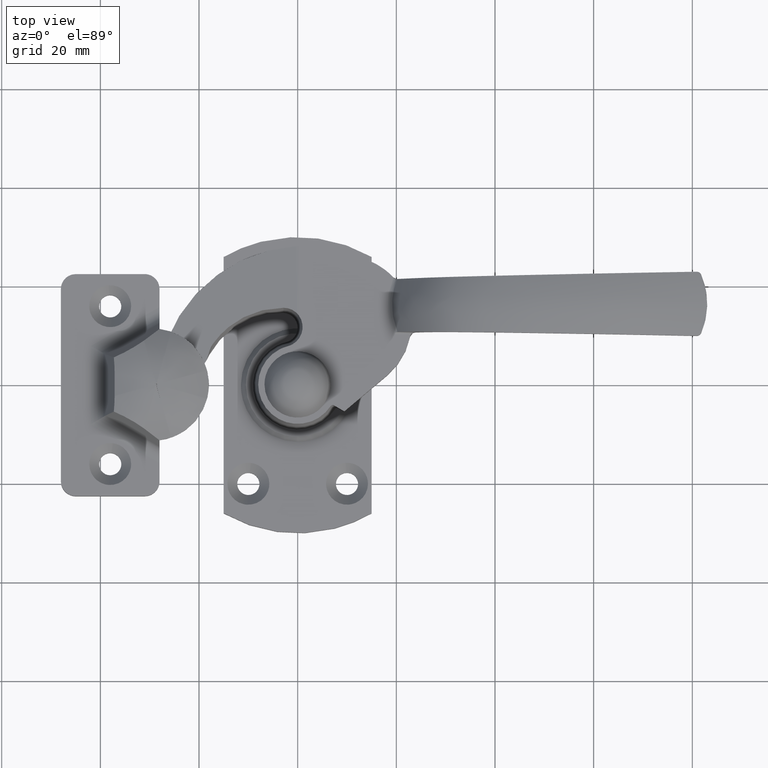
[diagram: clean part render]
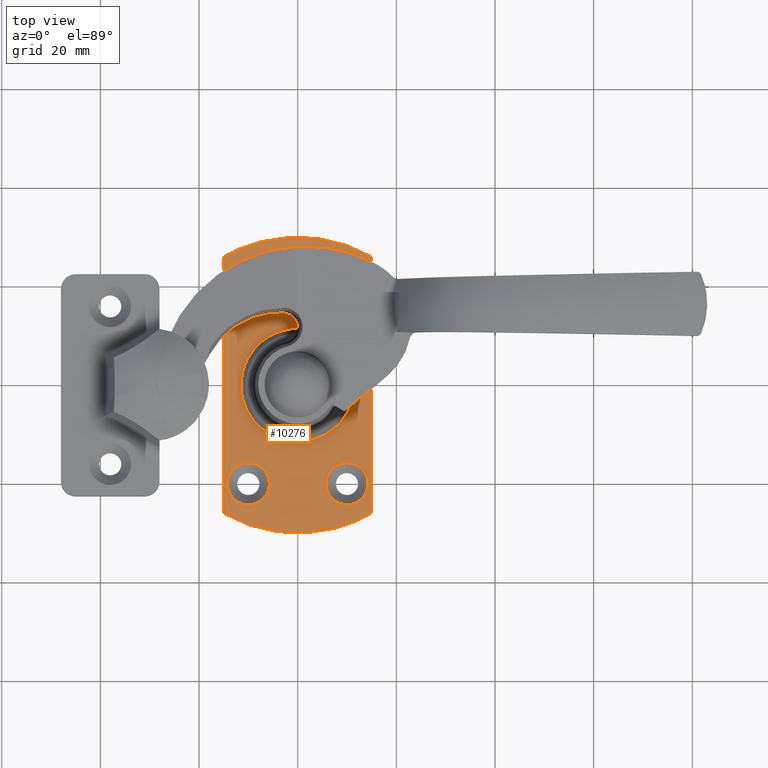
[diagram: same view with one face highlighted and labeled with its STEP entity id]
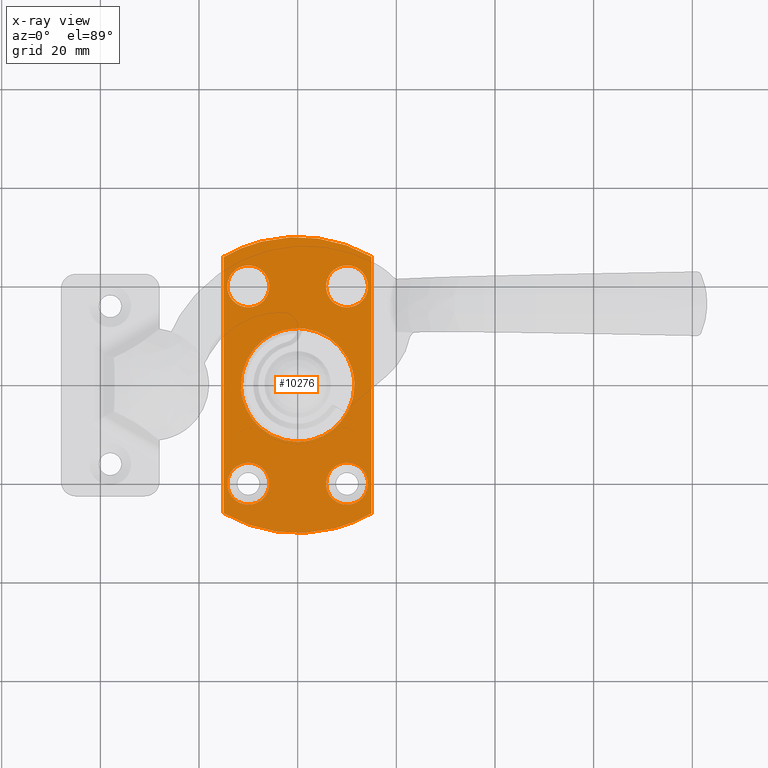
[diagram: x-ray of the same camera — body ghosted, the highlighted face saturated]
A machine part, top view. The second image highlights one B-rep face of the part: STEP entity #10276.
The next image is the same camera in x-ray: the body ghosted, the highlighted face saturated — about 0% of this face is hidden behind the body in this view.
In plain terms, the highlighted face is a freeform B-spline surface patch.
Its self-contained STEP definition (entity closure, byte-faithful):
#7090=CARTESIAN_POINT('',(9.498354502194580,15.779709512949550,5.000000000065622));
#7091=VERTEX_POINT('',#7090);
#7097=CARTESIAN_POINT('',(14.250000000000000,20.0,5.000000000000091));
#7098=VERTEX_POINT('',#7097);
#7099=CARTESIAN_POINT('',(9.498354502194580,15.779709512949541,5.000000000065622));
#7100=CARTESIAN_POINT('',(9.748297490967568,15.750000000000000,5.000000000000091));
#7101=CARTESIAN_POINT('',(10.0,15.750000000000000,5.000000000000091));
#7102=CARTESIAN_POINT('',(14.249999999999996,15.750000000000009,5.000000000000091));
#7103=CARTESIAN_POINT('',(14.250000000000000,20.0,5.000000000000091));
#7111=(BOUNDED_CURVE()B_SPLINE_CURVE(2,(#7099,#7100,#7101,#7102,#7103),.UNSPECIFIED.,.F.,.U.)B_SPLINE_CURVE_WITH_KNOTS((3,2,3),(0.229562473475081,0.250000000000000,0.500000000000000),.UNSPECIFIED.)CURVE()GEOMETRIC_REPRESENTATION_ITEM()RATIONAL_B_SPLINE_CURVE((0.956026754108381,0.976055948286125,1.0,0.707106781186548,1.0))REPRESENTATION_ITEM(''));
#7112=EDGE_CURVE('',#7091,#7098,#7111,.T.);
#7114=CARTESIAN_POINT('',(10.259456293055960,24.242072893295209,5.000000000004363));
#7115=VERTEX_POINT('',#7114);
#7116=CARTESIAN_POINT('',(14.250000000000000,20.0,5.000000000000091));
#7117=CARTESIAN_POINT('',(14.250000000000002,23.998000784287729,5.000000000000091));
#7118=CARTESIAN_POINT('',(10.259456293055965,24.242072893295212,5.000000000004363));
#7126=(BOUNDED_CURVE()B_SPLINE_CURVE(2,(#7116,#7117,#7118),.UNSPECIFIED.,.F.,.U.)B_SPLINE_CURVE_WITH_KNOTS((3,3),(0.500000000000000,0.739332962239320),.UNSPECIFIED.)CURVE()GEOMETRIC_REPRESENTATION_ITEM()RATIONAL_B_SPLINE_CURVE((1.0,0.719603993286268,0.976072041667527))REPRESENTATION_ITEM(''));
#7127=EDGE_CURVE('',#7098,#7115,#7126,.T.);
#7161=CARTESIAN_POINT('',(5.750000000000000,20.0,5.000000000000091));
#7162=VERTEX_POINT('',#7161);
#7163=CARTESIAN_POINT('',(10.259456293055965,24.242072893295209,5.000000000004364));
#7164=CARTESIAN_POINT('',(10.129849244051652,24.249999999999996,5.000000000000091));
#7165=CARTESIAN_POINT('',(10.0,24.250000000000000,5.000000000000091));
#7166=CARTESIAN_POINT('',(5.750000000000000,24.250000000000004,5.000000000000091));
#7167=CARTESIAN_POINT('',(5.750000000000000,20.0,5.000000000000091));
#7175=(BOUNDED_CURVE()B_SPLINE_CURVE(2,(#7163,#7164,#7165,#7166,#7167),.UNSPECIFIED.,.F.,.U.)B_SPLINE_CURVE_WITH_KNOTS((3,2,3),(0.739332962239320,0.750000000000000,1.0),.UNSPECIFIED.)CURVE()GEOMETRIC_REPRESENTATION_ITEM()RATIONAL_B_SPLINE_CURVE((0.976072041667525,0.987502787900279,1.0,0.707106781186548,1.0))REPRESENTATION_ITEM(''));
#7176=EDGE_CURVE('',#7115,#7162,#7175,.T.);
#7178=CARTESIAN_POINT('',(5.750000000000000,20.0,5.000000000000091));
#7179=CARTESIAN_POINT('',(5.750000000000000,16.225258265619047,5.000000000000092));
#7180=CARTESIAN_POINT('',(9.498354502194580,15.779709512949541,5.000000000065622));
#7188=(BOUNDED_CURVE()B_SPLINE_CURVE(2,(#7178,#7179,#7180),.UNSPECIFIED.,.F.,.U.)B_SPLINE_CURVE_WITH_KNOTS((3,3),(0.0,0.229562473475081),.UNSPECIFIED.)CURVE()GEOMETRIC_REPRESENTATION_ITEM()RATIONAL_B_SPLINE_CURVE((1.0,0.731050832900423,0.956026754108381))REPRESENTATION_ITEM(''));
#7189=EDGE_CURVE('',#7162,#7091,#7188,.T.);
#7415=CARTESIAN_POINT('',(-9.666548842930418,15.763101331622209,5.000000000029798));
#7416=VERTEX_POINT('',#7415);
#7422=CARTESIAN_POINT('',(-5.750000000000000,20.0,5.000000000000091));
#7423=VERTEX_POINT('',#7422);
#7424=CARTESIAN_POINT('',(-5.750000000000000,20.0,5.000000000000091));
#7425=CARTESIAN_POINT('',(-5.750000000000000,16.071340410869141,5.000000000000091));
#7426=CARTESIAN_POINT('',(-9.666548842930418,15.763101331622208,5.000000000029799));
#7434=(BOUNDED_CURVE()B_SPLINE_CURVE(2,(#7424,#7425,#7426),.UNSPECIFIED.,.F.,.U.)B_SPLINE_CURVE_WITH_KNOTS((3,3),(0.0,0.236331300614648),.UNSPECIFIED.)CURVE()GEOMETRIC_REPRESENTATION_ITEM()RATIONAL_B_SPLINE_CURVE((1.0,0.723120658626424,0.969723356134003))REPRESENTATION_ITEM(''));
#7435=EDGE_CURVE('',#7423,#7416,#7434,.T.);
#7437=CARTESIAN_POINT('',(-10.333451157069581,24.236898668377791,5.000000000029798));
#7438=VERTEX_POINT('',#7437);
#7439=CARTESIAN_POINT('',(-10.333451157069582,24.236898668377794,5.000000000029798));
#7440=CARTESIAN_POINT('',(-10.166982955007548,24.250000000000004,5.000000000000091));
#7441=CARTESIAN_POINT('',(-10.0,24.250000000000000,5.000000000000091));
#7442=CARTESIAN_POINT('',(-5.750000000000000,24.250000000000004,5.000000000000091));
#7443=CARTESIAN_POINT('',(-5.750000000000000,20.0,5.000000000000091));
#7451=(BOUNDED_CURVE()B_SPLINE_CURVE(2,(#7439,#7440,#7441,#7442,#7443),.UNSPECIFIED.,.F.,.U.)B_SPLINE_CURVE_WITH_KNOTS((3,2,3),(0.736331300614648,0.750000000000000,1.0),.UNSPECIFIED.)CURVE()GEOMETRIC_REPRESENTATION_ITEM()RATIONAL_B_SPLINE_CURVE((0.969723356134003,0.983986122560123,1.0,0.707106781186548,1.0))REPRESENTATION_ITEM(''));
#7452=EDGE_CURVE('',#7438,#7423,#7451,.T.);
#7489=CARTESIAN_POINT('',(-14.250000000000000,20.0,5.000000000000091));
#7490=VERTEX_POINT('',#7489);
#7491=CARTESIAN_POINT('',(-14.250000000000000,20.0,5.000000000000091));
#7492=CARTESIAN_POINT('',(-14.249999999999998,23.928659589130827,5.000000000000090));
#7493=CARTESIAN_POINT('',(-10.333451157069581,24.236898668377787,5.000000000029798));
#7501=(BOUNDED_CURVE()B_SPLINE_CURVE(2,(#7491,#7492,#7493),.UNSPECIFIED.,.F.,.U.)B_SPLINE_CURVE_WITH_KNOTS((3,3),(0.500000000000000,0.736331300614647),.UNSPECIFIED.)CURVE()GEOMETRIC_REPRESENTATION_ITEM()RATIONAL_B_SPLINE_CURVE((1.0,0.723120658626425,0.969723356134001))REPRESENTATION_ITEM(''));
#7502=EDGE_CURVE('',#7490,#7438,#7501,.T.);
#7504=CARTESIAN_POINT('',(-9.666548842930418,15.763101331622211,5.000000000029798));
#7505=CARTESIAN_POINT('',(-9.833017044992454,15.749999999999998,5.000000000000092));
#7506=CARTESIAN_POINT('',(-10.0,15.750000000000000,5.000000000000091));
#7507=CARTESIAN_POINT('',(-14.249999999999996,15.750000000000009,5.000000000000091));
#7508=CARTESIAN_POINT('',(-14.250000000000000,20.0,5.000000000000091));
#7516=(BOUNDED_CURVE()B_SPLINE_CURVE(2,(#7504,#7505,#7506,#7507,#7508),.UNSPECIFIED.,.F.,.U.)B_SPLINE_CURVE_WITH_KNOTS((3,2,3),(0.236331300614648,0.250000000000000,0.500000000000000),.UNSPECIFIED.)CURVE()GEOMETRIC_REPRESENTATION_ITEM()RATIONAL_B_SPLINE_CURVE((0.969723356134003,0.983986122560123,1.0,0.707106781186548,1.0))REPRESENTATION_ITEM(''));
#7517=EDGE_CURVE('',#7416,#7490,#7516,.T.);
#7743=CARTESIAN_POINT('',(9.666548842930418,-15.763101331622209,5.000000000029798));
#7744=VERTEX_POINT('',#7743);
#7750=CARTESIAN_POINT('',(5.750000000000000,-20.0,5.000000000000091));
#7751=VERTEX_POINT('',#7750);
#7752=CARTESIAN_POINT('',(5.750000000000000,-20.0,5.000000000000091));
#7753=CARTESIAN_POINT('',(5.750000000000000,-16.071340410869141,5.000000000000091));
#7754=CARTESIAN_POINT('',(9.666548842930418,-15.763101331622208,5.000000000029799));
#7762=(BOUNDED_CURVE()B_SPLINE_CURVE(2,(#7752,#7753,#7754),.UNSPECIFIED.,.F.,.U.)B_SPLINE_CURVE_WITH_KNOTS((3,3),(0.0,0.236331300614648),.UNSPECIFIED.)CURVE()GEOMETRIC_REPRESENTATION_ITEM()RATIONAL_B_SPLINE_CURVE((1.0,0.723120658626424,0.969723356134003))REPRESENTATION_ITEM(''));
#7763=EDGE_CURVE('',#7751,#7744,#7762,.T.);
#7765=CARTESIAN_POINT('',(10.333451157069581,-24.236898668377791,5.000000000029798));
#7766=VERTEX_POINT('',#7765);
#7767=CARTESIAN_POINT('',(10.333451157069582,-24.236898668377794,5.000000000029798));
#7768=CARTESIAN_POINT('',(10.166982955007548,-24.250000000000004,5.000000000000091));
#7769=CARTESIAN_POINT('',(10.0,-24.250000000000000,5.000000000000091));
#7770=CARTESIAN_POINT('',(5.750000000000000,-24.250000000000004,5.000000000000091));
#7771=CARTESIAN_POINT('',(5.750000000000000,-20.0,5.000000000000091));
#7779=(BOUNDED_CURVE()B_SPLINE_CURVE(2,(#7767,#7768,#7769,#7770,#7771),.UNSPECIFIED.,.F.,.U.)B_SPLINE_CURVE_WITH_KNOTS((3,2,3),(0.736331300614648,0.750000000000000,1.0),.UNSPECIFIED.)CURVE()GEOMETRIC_REPRESENTATION_ITEM()RATIONAL_B_SPLINE_CURVE((0.969723356134003,0.983986122560123,1.0,0.707106781186548,1.0))REPRESENTATION_ITEM(''));
#7780=EDGE_CURVE('',#7766,#7751,#7779,.T.);
#7817=CARTESIAN_POINT('',(14.250000000000000,-20.0,5.000000000000091));
#7818=VERTEX_POINT('',#7817);
#7819=CARTESIAN_POINT('',(14.250000000000000,-20.0,5.000000000000091));
#7820=CARTESIAN_POINT('',(14.249999999999998,-23.928659589130827,5.000000000000090));
#7821=CARTESIAN_POINT('',(10.333451157069581,-24.236898668377787,5.000000000029798));
#7829=(BOUNDED_CURVE()B_SPLINE_CURVE(2,(#7819,#7820,#7821),.UNSPECIFIED.,.F.,.U.)B_SPLINE_CURVE_WITH_KNOTS((3,3),(0.500000000000000,0.736331300614647),.UNSPECIFIED.)CURVE()GEOMETRIC_REPRESENTATION_ITEM()RATIONAL_B_SPLINE_CURVE((1.0,0.723120658626425,0.969723356134001))REPRESENTATION_ITEM(''));
#7830=EDGE_CURVE('',#7818,#7766,#7829,.T.);
#7832=CARTESIAN_POINT('',(9.666548842930418,-15.763101331622211,5.000000000029798));
#7833=CARTESIAN_POINT('',(9.833017044992454,-15.749999999999998,5.000000000000092));
#7834=CARTESIAN_POINT('',(10.0,-15.750000000000000,5.000000000000091));
#7835=CARTESIAN_POINT('',(14.249999999999996,-15.750000000000009,5.000000000000091));
#7836=CARTESIAN_POINT('',(14.250000000000000,-20.0,5.000000000000091));
#7844=(BOUNDED_CURVE()B_SPLINE_CURVE(2,(#7832,#7833,#7834,#7835,#7836),.UNSPECIFIED.,.F.,.U.)B_SPLINE_CURVE_WITH_KNOTS((3,2,3),(0.236331300614648,0.250000000000000,0.500000000000000),.UNSPECIFIED.)CURVE()GEOMETRIC_REPRESENTATION_ITEM()RATIONAL_B_SPLINE_CURVE((0.969723356134003,0.983986122560123,1.0,0.707106781186548,1.0))REPRESENTATION_ITEM(''));
#7845=EDGE_CURVE('',#7744,#7818,#7844,.T.);
#8090=CARTESIAN_POINT('',(-9.498354502194580,-15.779709512949550,5.000000000065622));
#8091=VERTEX_POINT('',#8090);
#8097=CARTESIAN_POINT('',(-14.250000000000000,-20.0,5.000000000000091));
#8098=VERTEX_POINT('',#8097);
#8099=CARTESIAN_POINT('',(-9.498354502194580,-15.779709512949541,5.000000000065622));
#8100=CARTESIAN_POINT('',(-9.748297490967568,-15.750000000000000,5.000000000000091));
#8101=CARTESIAN_POINT('',(-10.0,-15.750000000000000,5.000000000000091));
#8102=CARTESIAN_POINT('',(-14.249999999999996,-15.750000000000009,5.000000000000091));
#8103=CARTESIAN_POINT('',(-14.250000000000000,-20.0,5.000000000000091));
#8111=(BOUNDED_CURVE()B_SPLINE_CURVE(2,(#8099,#8100,#8101,#8102,#8103),.UNSPECIFIED.,.F.,.U.)B_SPLINE_CURVE_WITH_KNOTS((3,2,3),(0.229562473475081,0.250000000000000,0.500000000000000),.UNSPECIFIED.)CURVE()GEOMETRIC_REPRESENTATION_ITEM()RATIONAL_B_SPLINE_CURVE((0.956026754108381,0.976055948286125,1.0,0.707106781186548,1.0))REPRESENTATION_ITEM(''));
#8112=EDGE_CURVE('',#8091,#8098,#8111,.T.);
#8114=CARTESIAN_POINT('',(-10.259456293055960,-24.242072893295209,5.000000000004363));
#8115=VERTEX_POINT('',#8114);
#8116=CARTESIAN_POINT('',(-14.250000000000000,-20.0,5.000000000000091));
#8117=CARTESIAN_POINT('',(-14.250000000000002,-23.998000784287729,5.000000000000091));
#8118=CARTESIAN_POINT('',(-10.259456293055965,-24.242072893295212,5.000000000004363));
#8126=(BOUNDED_CURVE()B_SPLINE_CURVE(2,(#8116,#8117,#8118),.UNSPECIFIED.,.F.,.U.)B_SPLINE_CURVE_WITH_KNOTS((3,3),(0.500000000000000,0.739332962239320),.UNSPECIFIED.)CURVE()GEOMETRIC_REPRESENTATION_ITEM()RATIONAL_B_SPLINE_CURVE((1.0,0.719603993286268,0.976072041667527))REPRESENTATION_ITEM(''));
#8127=EDGE_CURVE('',#8098,#8115,#8126,.T.);
#8161=CARTESIAN_POINT('',(-5.750000000000000,-20.0,5.000000000000091));
#8162=VERTEX_POINT('',#8161);
#8163=CARTESIAN_POINT('',(-10.259456293055965,-24.242072893295209,5.000000000004364));
#8164=CARTESIAN_POINT('',(-10.129849244051652,-24.249999999999996,5.000000000000091));
#8165=CARTESIAN_POINT('',(-10.0,-24.250000000000000,5.000000000000091));
#8166=CARTESIAN_POINT('',(-5.750000000000000,-24.250000000000004,5.000000000000091));
#8167=CARTESIAN_POINT('',(-5.750000000000000,-20.0,5.000000000000091));
#8175=(BOUNDED_CURVE()B_SPLINE_CURVE(2,(#8163,#8164,#8165,#8166,#8167),.UNSPECIFIED.,.F.,.U.)B_SPLINE_CURVE_WITH_KNOTS((3,2,3),(0.739332962239320,0.750000000000000,1.0),.UNSPECIFIED.)CURVE()GEOMETRIC_REPRESENTATION_ITEM()RATIONAL_B_SPLINE_CURVE((0.976072041667525,0.987502787900279,1.0,0.707106781186548,1.0))REPRESENTATION_ITEM(''));
#8176=EDGE_CURVE('',#8115,#8162,#8175,.T.);
#8178=CARTESIAN_POINT('',(-5.750000000000000,-20.0,5.000000000000091));
#8179=CARTESIAN_POINT('',(-5.750000000000000,-16.225258265619047,5.000000000000092));
#8180=CARTESIAN_POINT('',(-9.498354502194580,-15.779709512949541,5.000000000065622));
#8188=(BOUNDED_CURVE()B_SPLINE_CURVE(2,(#8178,#8179,#8180),.UNSPECIFIED.,.F.,.U.)B_SPLINE_CURVE_WITH_KNOTS((3,3),(0.0,0.229562473475081),.UNSPECIFIED.)CURVE()GEOMETRIC_REPRESENTATION_ITEM()RATIONAL_B_SPLINE_CURVE((1.0,0.731050832900423,0.956026754108381))REPRESENTATION_ITEM(''));
#8189=EDGE_CURVE('',#8162,#8091,#8188,.T.);
#8611=CARTESIAN_POINT('',(-0.100355158670702,-11.499562115294040,4.999999999940126));
#8612=VERTEX_POINT('',#8611);
#8618=CARTESIAN_POINT('',(11.500000000000000,0.0,5.000000000000091));
#8619=VERTEX_POINT('',#8618);
#8620=CARTESIAN_POINT('',(11.500000000000000,0.0,5.000000000000091));
#8621=CARTESIAN_POINT('',(11.500000000000000,-11.500000000000000,5.000000000000091));
#8622=CARTESIAN_POINT('',(0.0,-11.500000000000000,5.000000000000091));
#8623=CARTESIAN_POINT('',(-0.050178534876954,-11.499999999999998,5.000000000000091));
#8624=CARTESIAN_POINT('',(-0.100355158670702,-11.499562115294042,4.999999999940126));
#8632=(BOUNDED_CURVE()B_SPLINE_CURVE(2,(#8620,#8621,#8622,#8623,#8624),.UNSPECIFIED.,.F.,.U.)B_SPLINE_CURVE_WITH_KNOTS((3,2,3),(0.500000000000000,0.750000000000000,0.751539894348431),.UNSPECIFIED.)CURVE()GEOMETRIC_REPRESENTATION_ITEM()RATIONAL_B_SPLINE_CURVE((1.0,0.707106781186548,1.0,0.998195901550621,0.996414028069292))REPRESENTATION_ITEM(''));
#8633=EDGE_CURVE('',#8619,#8612,#8632,.T.);
#8635=CARTESIAN_POINT('',(1.427472024025387,11.411061458993929,4.999999999986475));
#8636=VERTEX_POINT('',#8635);
#8637=CARTESIAN_POINT('',(1.427472024025387,11.411061458993931,4.999999999986476));
#8638=CARTESIAN_POINT('',(11.500000000000000,10.151033901538167,5.000000000000092));
#8639=CARTESIAN_POINT('',(11.500000000000000,0.0,5.000000000000091));
#8647=(BOUNDED_CURVE()B_SPLINE_CURVE(2,(#8637,#8638,#8639),.UNSPECIFIED.,.F.,.U.)B_SPLINE_CURVE_WITH_KNOTS((3,3),(0.271473928973825,0.500000000000000),.UNSPECIFIED.)CURVE()GEOMETRIC_REPRESENTATION_ITEM()RATIONAL_B_SPLINE_CURVE((0.954005430268657,0.732265053897407,1.0))REPRESENTATION_ITEM(''));
#8648=EDGE_CURVE('',#8636,#8619,#8647,.T.);
#8698=CARTESIAN_POINT('',(-11.500000000000000,0.0,5.000000000000091));
#8699=VERTEX_POINT('',#8698);
#8700=CARTESIAN_POINT('',(-11.500000000000000,0.0,5.000000000000091));
#8701=CARTESIAN_POINT('',(-11.500000000000000,11.500000000000000,5.000000000000091));
#8702=CARTESIAN_POINT('',(0.0,11.500000000000000,5.000000000000091));
#8703=CARTESIAN_POINT('',(0.716506666742087,11.499999999999996,5.000000000000092));
#8704=CARTESIAN_POINT('',(1.427472024025387,11.411061458993929,4.999999999986476));
#8712=(BOUNDED_CURVE()B_SPLINE_CURVE(2,(#8700,#8701,#8702,#8703,#8704),.UNSPECIFIED.,.F.,.U.)B_SPLINE_CURVE_WITH_KNOTS((3,2,3),(0.0,0.250000000000000,0.271473928973825),.UNSPECIFIED.)CURVE()GEOMETRIC_REPRESENTATION_ITEM()RATIONAL_B_SPLINE_CURVE((1.0,0.707106781186548,1.0,0.974841727289140,0.954005430268658))REPRESENTATION_ITEM(''));
#8713=EDGE_CURVE('',#8699,#8636,#8712,.T.);
#8715=CARTESIAN_POINT('',(-0.100355158670702,-11.499562115294045,4.999999999940126));
#8716=CARTESIAN_POINT('',(-11.499999999999998,-11.400078920972049,5.000000000000090));
#8717=CARTESIAN_POINT('',(-11.500000000000000,0.0,5.000000000000091));
#8725=(BOUNDED_CURVE()B_SPLINE_CURVE(2,(#8715,#8716,#8717),.UNSPECIFIED.,.F.,.U.)B_SPLINE_CURVE_WITH_KNOTS((3,3),(0.751539894348432,1.0),.UNSPECIFIED.)CURVE()GEOMETRIC_REPRESENTATION_ITEM()RATIONAL_B_SPLINE_CURVE((0.996414028069290,0.708910879635927,1.0))REPRESENTATION_ITEM(''));
#8726=EDGE_CURVE('',#8612,#8699,#8725,.T.);
#10069=CARTESIAN_POINT('',(-15.0,-25.980761999999999,5.000000000000120));
#10070=VERTEX_POINT('',#10069);
#10076=CARTESIAN_POINT('',(-15.0,25.980762113533149,5.000000000000120));
#10077=VERTEX_POINT('',#10076);
#10078=CARTESIAN_POINT('',(-15.0,25.980762113533149,5.000000000000120));
#10079=CARTESIAN_POINT('',(-15.0,-25.980761999999999,5.000000000000120));
#10080=QUASI_UNIFORM_CURVE('',1,(#10078,#10079),.UNSPECIFIED.,.F.,.U.);
#10081=EDGE_CURVE('',#10077,#10070,#10080,.T.);
#10121=CARTESIAN_POINT('',(15.0,25.980761999999999,5.000000000000120));
#10122=VERTEX_POINT('',#10121);
#10123=CARTESIAN_POINT('',(15.0,25.980761999999999,5.000000000000120));
#10124=CARTESIAN_POINT('',(0.000000032774195,34.641016170299736,5.000000000000120));
#10125=CARTESIAN_POINT('',(-15.0,25.980762113533160,5.000000000000120));
#10133=(BOUNDED_CURVE()B_SPLINE_CURVE(2,(#10123,#10124,#10125),.UNSPECIFIED.,.F.,.U.)CURVE()GEOMETRIC_REPRESENTATION_ITEM()QUASI_UNIFORM_CURVE()RATIONAL_B_SPLINE_CURVE((1.0,0.866025403311384,1.0))REPRESENTATION_ITEM(''));
#10134=EDGE_CURVE('',#10122,#10077,#10133,.T.);
#10157=CARTESIAN_POINT('',(15.0,-25.980762000000048,5.000000000000120));
#10158=VERTEX_POINT('',#10157);
#10159=CARTESIAN_POINT('',(15.0,-25.980762000000048,5.000000000000120));
#10160=CARTESIAN_POINT('',(15.0,25.980761999999999,5.000000000000120));
#10161=QUASI_UNIFORM_CURVE('',1,(#10159,#10160),.UNSPECIFIED.,.F.,.U.);
#10162=EDGE_CURVE('',#10158,#10122,#10161,.T.);
#10200=CARTESIAN_POINT('',(-15.0,-25.980761999999999,5.000000000000120));
#10201=CARTESIAN_POINT('',(-1.734723E-015,-34.641016189221936,5.000000000000120));
#10202=CARTESIAN_POINT('',(15.0,-25.980762000000048,5.000000000000120));
#10210=(BOUNDED_CURVE()B_SPLINE_CURVE(2,(#10200,#10201,#10202),.UNSPECIFIED.,.F.,.U.)CURVE()GEOMETRIC_REPRESENTATION_ITEM()QUASI_UNIFORM_CURVE()RATIONAL_B_SPLINE_CURVE((1.0,0.866025402838329,1.0))REPRESENTATION_ITEM(''));
#10211=EDGE_CURVE('',#10070,#10158,#10210,.T.);
#10235=CARTESIAN_POINT('',(16.498499941854181,32.996999857473547,5.000000000000091));
#10236=CARTESIAN_POINT('',(-16.498500746516889,32.996999857473547,5.000000000000091));
#10237=CARTESIAN_POINT('',(16.498499941854181,-32.997001443983130,5.000000000000091));
#10238=CARTESIAN_POINT('',(-16.498500746516889,-32.997001443983130,5.000000000000091));
#10239=B_SPLINE_SURFACE_WITH_KNOTS('',1,1,((#10235,#10237),(#10236,#10238)),.UNSPECIFIED.,.F.,.F.,.U.,(2,2),(2,2),(0.0,32.997000688371060),(0.0,65.994001301456677),.UNSPECIFIED.);
#10240=ORIENTED_EDGE('',*,*,#10211,.T.);
#10241=ORIENTED_EDGE('',*,*,#10162,.T.);
#10242=ORIENTED_EDGE('',*,*,#10134,.T.);
#10243=ORIENTED_EDGE('',*,*,#10081,.T.);
#10244=EDGE_LOOP('',(#10240,#10241,#10242,#10243));
#10245=FACE_OUTER_BOUND('',#10244,.T.);
#10246=ORIENTED_EDGE('',*,*,#8633,.T.);
#10247=ORIENTED_EDGE('',*,*,#8726,.T.);
#10248=ORIENTED_EDGE('',*,*,#8713,.T.);
#10249=ORIENTED_EDGE('',*,*,#8648,.T.);
#10250=EDGE_LOOP('',(#10246,#10247,#10248,#10249));
#10251=FACE_BOUND('',#10250,.T.);
#10252=ORIENTED_EDGE('',*,*,#8127,.F.);
#10253=ORIENTED_EDGE('',*,*,#8112,.F.);
#10254=ORIENTED_EDGE('',*,*,#8189,.F.);
#10255=ORIENTED_EDGE('',*,*,#8176,.F.);
#10256=EDGE_LOOP('',(#10252,#10253,#10254,#10255));
#10257=FACE_BOUND('',#10256,.T.);
#10258=ORIENTED_EDGE('',*,*,#7830,.T.);
#10259=ORIENTED_EDGE('',*,*,#7780,.T.);
#10260=ORIENTED_EDGE('',*,*,#7763,.T.);
#10261=ORIENTED_EDGE('',*,*,#7845,.T.);
#10262=EDGE_LOOP('',(#10258,#10259,#10260,#10261));
#10263=FACE_BOUND('',#10262,.T.);
#10264=ORIENTED_EDGE('',*,*,#7502,.T.);
#10265=ORIENTED_EDGE('',*,*,#7452,.T.);
#10266=ORIENTED_EDGE('',*,*,#7435,.T.);
#10267=ORIENTED_EDGE('',*,*,#7517,.T.);
#10268=EDGE_LOOP('',(#10264,#10265,#10266,#10267));
#10269=FACE_BOUND('',#10268,.T.);
#10270=ORIENTED_EDGE('',*,*,#7127,.F.);
#10271=ORIENTED_EDGE('',*,*,#7112,.F.);
#10272=ORIENTED_EDGE('',*,*,#7189,.F.);
#10273=ORIENTED_EDGE('',*,*,#7176,.F.);
#10274=EDGE_LOOP('',(#10270,#10271,#10272,#10273));
#10275=FACE_BOUND('',#10274,.T.);
#10276=ADVANCED_FACE('',(#10245,#10251,#10257,#10263,#10269,#10275),#10239,.T.);